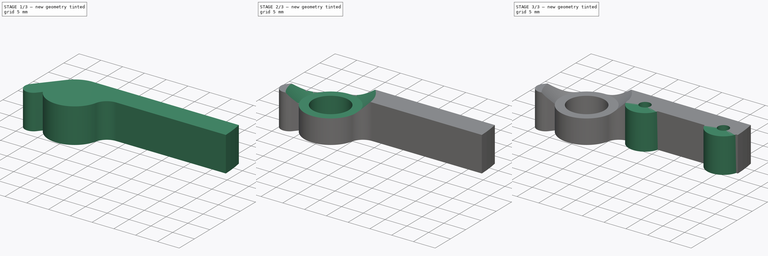
[diagram: build sequence overview — one tinted view per stage of 3, left to right]
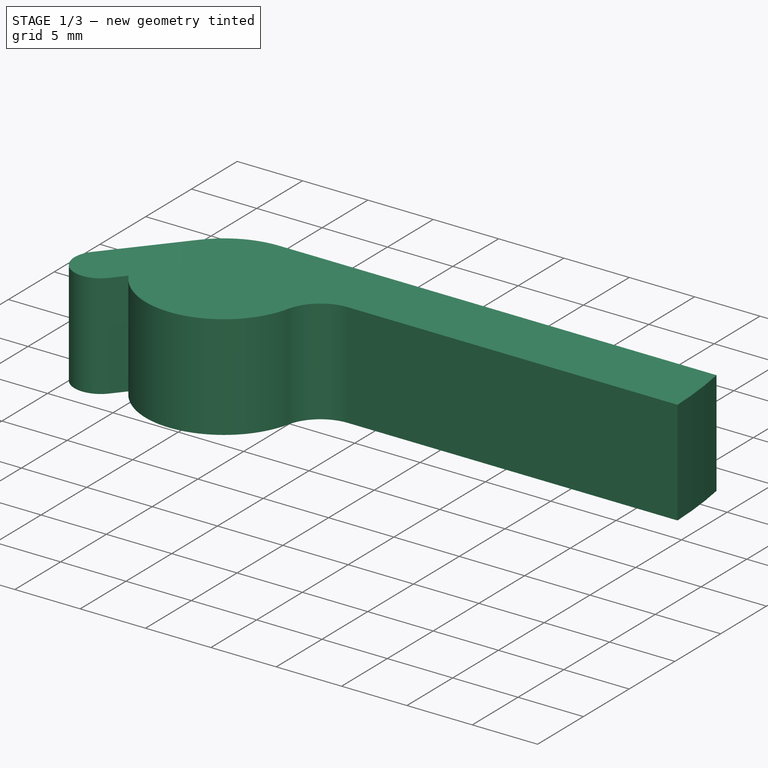
[diagram: stage 1 of 3 — iso view after this stage's code; geometry added in this stage tinted green]
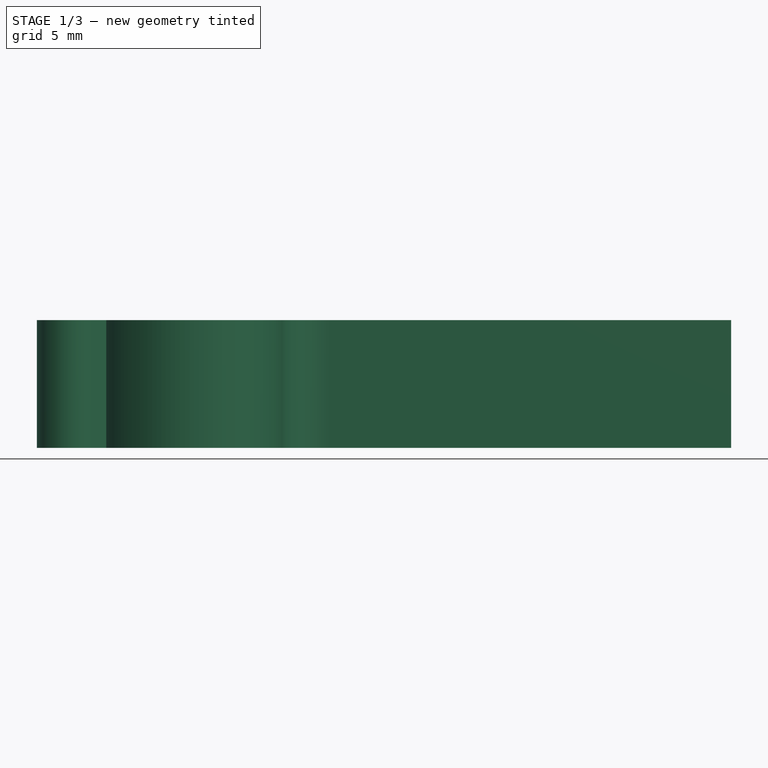
[diagram: stage 1 of 3 — front view after this stage's code; geometry added in this stage tinted green]
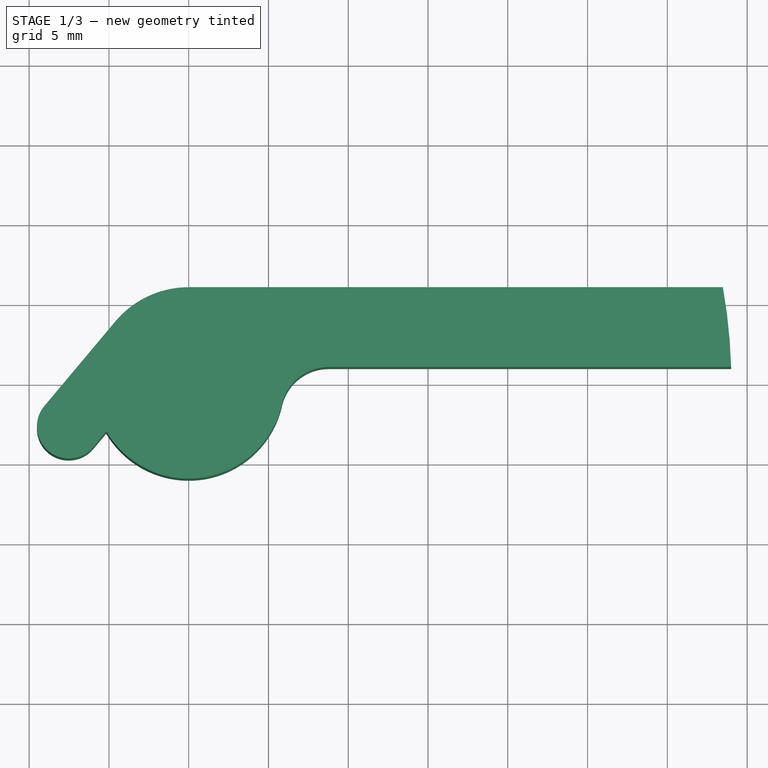
[diagram: stage 1 of 3 — top view after this stage's code; geometry added in this stage tinted green]
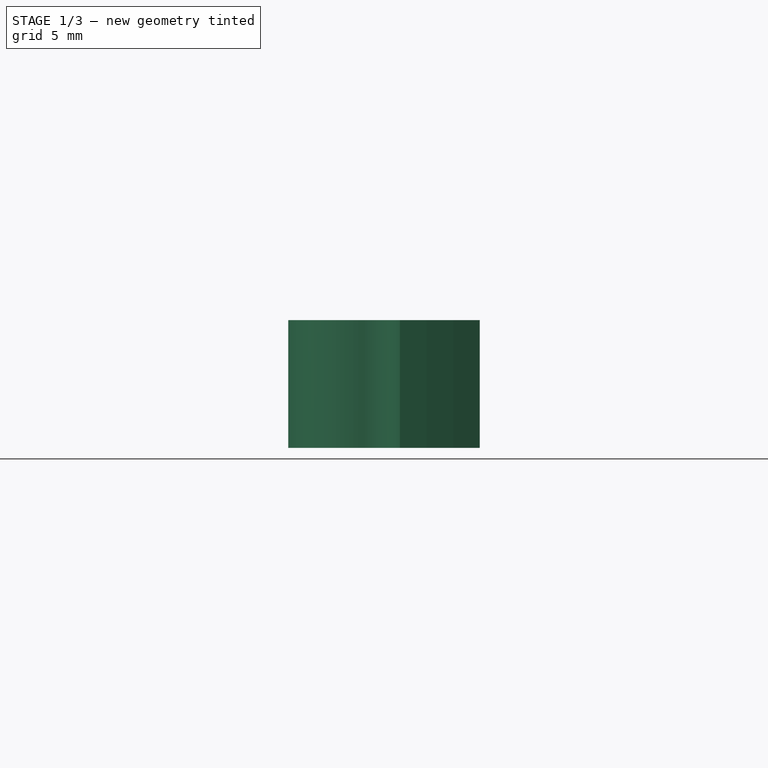
[diagram: stage 1 of 3 — right view after this stage's code; geometry added in this stage tinted green]
FCSTD DOCUMENT  (FreeCAD 1.0R39109 (Git))
Label: LoadingLever.stl
License: All rights reserved
LicenseURL: http://en.wikipedia.org/wiki/All_rights_reserved
objects: Sketcher::SketchObject×5, PartDesign::Pad×3, PartDesign::Groove×1, PartDesign::Pocket×1, PartDesign::Body×1, App::Part×1
note: 26 computed .brp shape members not serialized (recipe doc carries the construction recipe); baked Part::Feature solids carry a one-line shape summary decoded from their .brp

FEATURE [Sketcher::SketchObject] Sketch
  ArcFitTolerance = 1e-06
  AttachmentSupport = -> [XY_Plane001]
  FullyConstrained = true
  MakeInternals = false
  MapMode = 5
  sketch-geometry (6):
    g0: Circle [constr] CenterX=0 CenterY=0 CenterZ=0 NormalX=0 NormalY=0 NormalZ=1 AngleXU=0 Radius=6
    g1: ArcOfCircle CenterX=0 CenterY=0 CenterZ=0 NormalX=0 NormalY=0 NormalZ=1 AngleXU=0 Radius=6 StartAngle=1.5708 EndAngle=6.05909
    g2: ArcOfCircle CenterX=0 CenterY=0 CenterZ=0 NormalX=0 NormalY=0 NormalZ=1 AngleXU=0 Radius=34.0147 StartAngle=0.0294033 EndAngle=0.177322
    g3: LineSegment StartX=33.4813 StartY=6 StartZ=0 EndX=7.1e-15 EndY=6 EndZ=0
    g4: LineSegment StartX=34 StartY=1 StartZ=0 EndX=8.77496 EndY=1 EndZ=0
    g5: ArcOfCircle CenterX=8.77496 CenterY=-2 CenterZ=0 NormalX=0 NormalY=0 NormalZ=1 AngleXU=0 Radius=3 StartAngle=1.5708 EndAngle=2.9175
  constraints (16):
    c: Coincident(g0,g-1)
    c: Diameter(g0) = 12
    c: Coincident(g1,g0)
    c: DistanceY(g-1,g2) = 6
    c: DistanceY(g2,g2) = 5
    c: Coincident(g2,g0)
    c: DistanceX(g-1,g2) = 34
    c: Coincident(g3,g2)
    c: Horizontal(g3)
    c: PointOnObject(g3,g-2)
    c: Coincident(g4,g2)
    c: Horizontal(g4)
    c: Tangent(g5,g4) = -1.5708
    c: Tangent(g5,g1) = 1.5708
    c: Radius(g5) = 3
    c: Coincident(g1,g3)
FEATURE [PartDesign::Pad] Pad  label="Base"
  Direction = (0,0,1)
  Length = 8
  Length2 = 10
  Midplane = true
  Profile = -> Sketch
  ReferenceAxis = -> Sketch [N_Axis]
  Refine = true
  Suppressed = false
  Type = 0
FEATURE [Sketcher::SketchObject] Sketch001
  ArcFitTolerance = 1e-06
  AttachmentSupport = -> [XY_Plane001]
  FullyConstrained = true
  MakeInternals = false
  MapMode = 5
  sketch-geometry (7):
    g0: ArcOfCircle CenterX=-7.51754 CenterY=-2.73616 CenterZ=0 NormalX=0 NormalY=0 NormalZ=1 AngleXU=0 Radius=2 StartAngle=2.44346 EndAngle=5.58505
    g1: LineSegment [constr] StartX=-9.39693 StartY=-3.4202 StartZ=0 EndX=0 EndY=0 EndZ=0
    g2: LineSegment StartX=-9.04963 StartY=-1.45059 StartZ=0 EndX=-4.59627 EndY=3.85673 EndZ=0
    g3: LineSegment StartX=-5.98545 StartY=-4.02174 StartZ=0 EndX=-1.53209 EndY=1.28558 EndZ=0
    g4: Circle [constr] CenterX=0 CenterY=0 CenterZ=0 NormalX=0 NormalY=0 NormalZ=1 AngleXU=0 Radius=6
    g5: ArcOfCircle CenterX=-3.06418 CenterY=2.57115 CenterZ=0 NormalX=0 NormalY=0 NormalZ=1 AngleXU=0 Radius=2 StartAngle=5.58505 EndAngle=8.72665
    g6: LineSegment [constr] StartX=-4.59627 StartY=3.85673 StartZ=0 EndX=0 EndY=4e-16 EndZ=0
  constraints (17):
    c: Radius(g0) = 2
    c: PointOnObject(g1,g0)
    c: PointOnObject(g0,g1)
    c: Distance(g1,g1) = 10
    c: Angle(g-1,g1) = 0.349066
    c: Tangent(g3,g0) = -1.5708
    c: Tangent(g2,g0) = 1.5708
    c: Coincident(g1,g4)
    c: Coincident(g1,g-1)
    c: Equal(g5,g0)
    c: Tangent(g5,g2) = 1.5708
    c: Tangent(g5,g3) = -1.5708
    c: PointOnObject(g2,g4)
    c: Diameter(g4) = 12
    c: Coincident(g6,g2)
    c: Coincident(g6,g1)
    c: PointOnObject(g5,g6)
FEATURE [PartDesign::Pad] Pad001  label="Cam"
  BaseFeature = -> Pad
  Direction = (0,0,1)
  Length = 8
  Length2 = 10
  Midplane = true
  Profile = -> Sketch001
  ReferenceAxis = -> Sketch001 [N_Axis]
  Refine = true
  Suppressed = false
  Type = 0
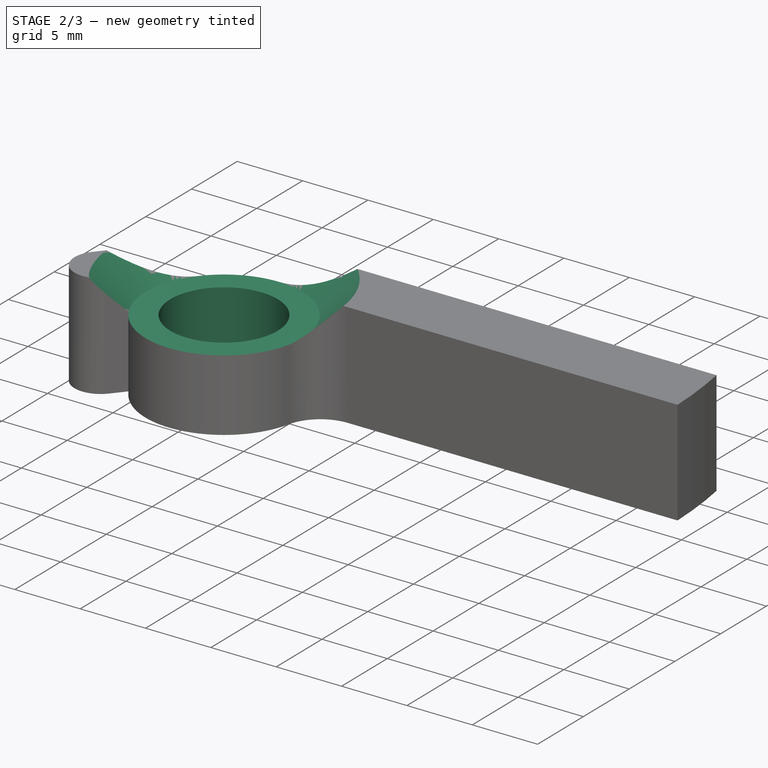
[diagram: stage 2 of 3 — iso view after this stage's code; geometry added in this stage tinted green]
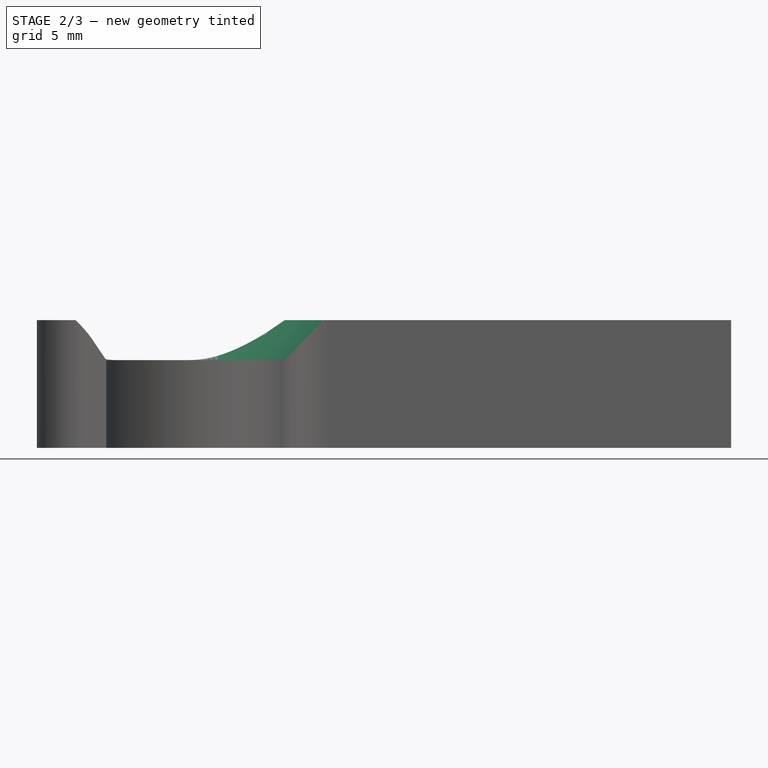
[diagram: stage 2 of 3 — front view after this stage's code; geometry added in this stage tinted green]
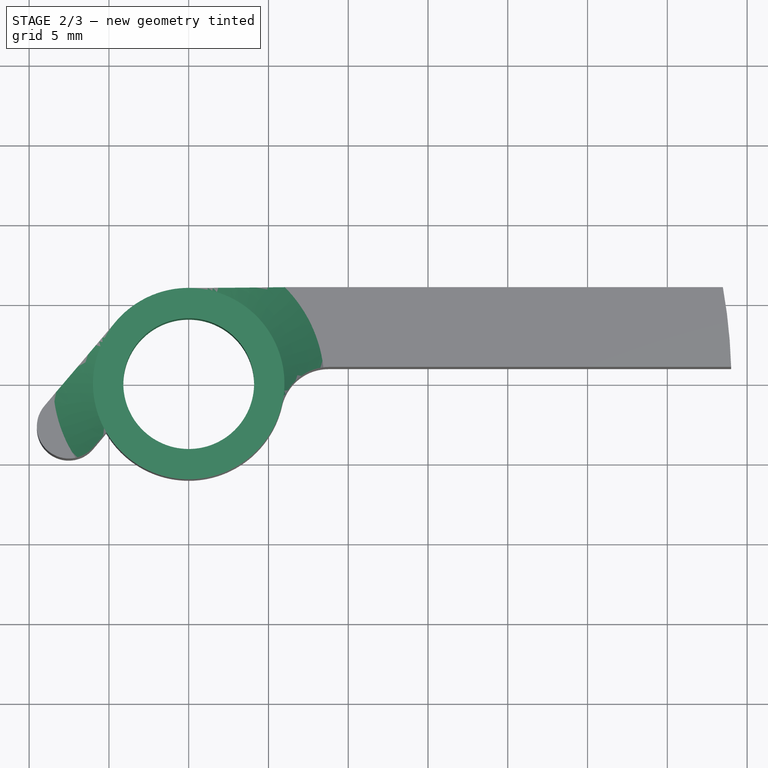
[diagram: stage 2 of 3 — top view after this stage's code; geometry added in this stage tinted green]
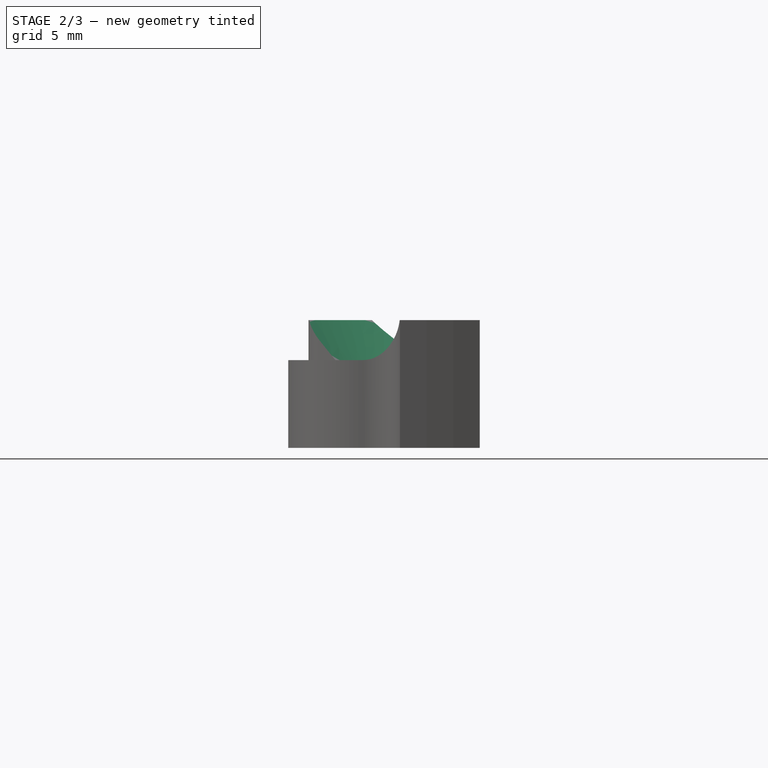
[diagram: stage 2 of 3 — right view after this stage's code; geometry added in this stage tinted green]
FEATURE [Sketcher::SketchObject] Sketch002
  ArcFitTolerance = 1e-06
  AttachmentSupport = -> [XZ_Plane001]
  FullyConstrained = true
  MakeInternals = false
  MapMode = 5
  Placement = pos=(0,0,0) rot=(1,0,0;1.5708rad)
  sketch-geometry (6):
    g0: LineSegment StartX=0 StartY=-20 StartZ=0 EndX=-4.1 EndY=-20 EndZ=0
    g1: LineSegment StartX=-4.1 StartY=-20 StartZ=0 EndX=-4.1 EndY=1.5 EndZ=0
    g2: LineSegment StartX=-4.1 StartY=1.5 StartZ=0 EndX=-6 EndY=1.5 EndZ=0
    g3: LineSegment StartX=-6 StartY=1.5 StartZ=0 EndX=-24.5 EndY=20 EndZ=0
    g4: LineSegment StartX=-24.5 StartY=20 StartZ=0 EndX=0 EndY=20 EndZ=0
    g5: LineSegment StartX=0 StartY=20 StartZ=0 EndX=0 EndY=-20 EndZ=0
  constraints (18):
    c: PointOnObject(g0,g-2)
    c: Horizontal(g0)
    c: Coincident(g0,g1)
    c: Vertical(g1)
    c: Coincident(g1,g2)
    c: Horizontal(g2)
    c: Coincident(g2,g3)
    c: Coincident(g3,g4)
    c: Horizontal(g4)
    c: Coincident(g4,g5)
    c: Coincident(g5,g0)
    c: Vertical(g5)
    c: DistanceX(g0,g0) = 4.1
    c: DistanceX(g2,g-1) = 6
    c: Angle(g3,g2) = 0.785398
    c: DistanceY(g-1,g4) = 20
    c: DistanceY(g0,g-1) = 20
    c: DistanceY(g-1,g1) = 1.5
FEATURE [PartDesign::Groove] Groove  label="PivotSeat"
  Angle = 360
  Angle2 = 60
  Axis = (0,2e-16,1)
  Base = (0,0,0)
  BaseFeature = -> Pad001
  Profile = -> Sketch002
  ReferenceAxis = -> Sketch002 [V_Axis]
  Refine = true
  Reversed = true
  Suppressed = false
  Type = 0
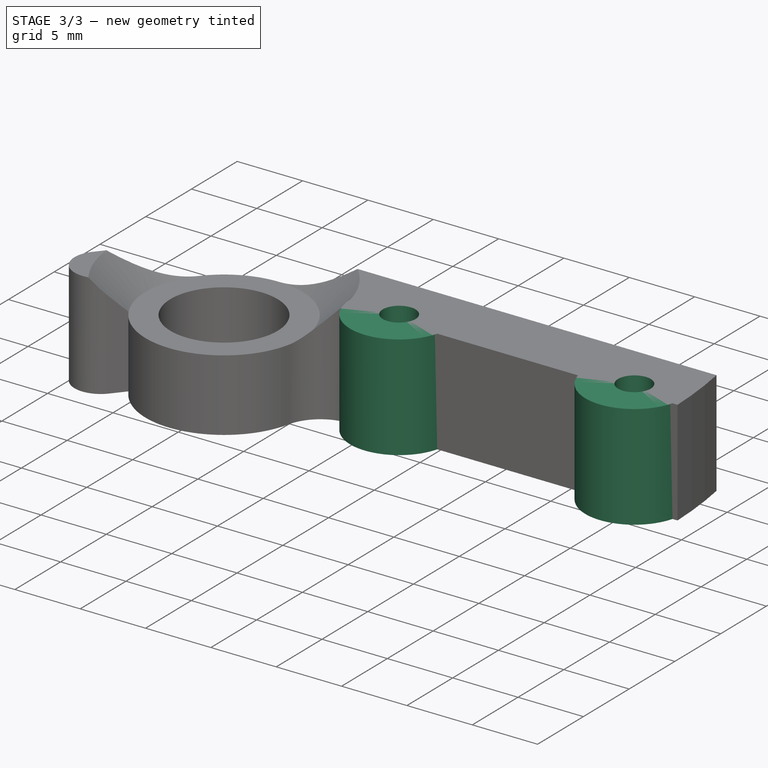
[diagram: stage 3 of 3 — iso view after this stage's code; geometry added in this stage tinted green]
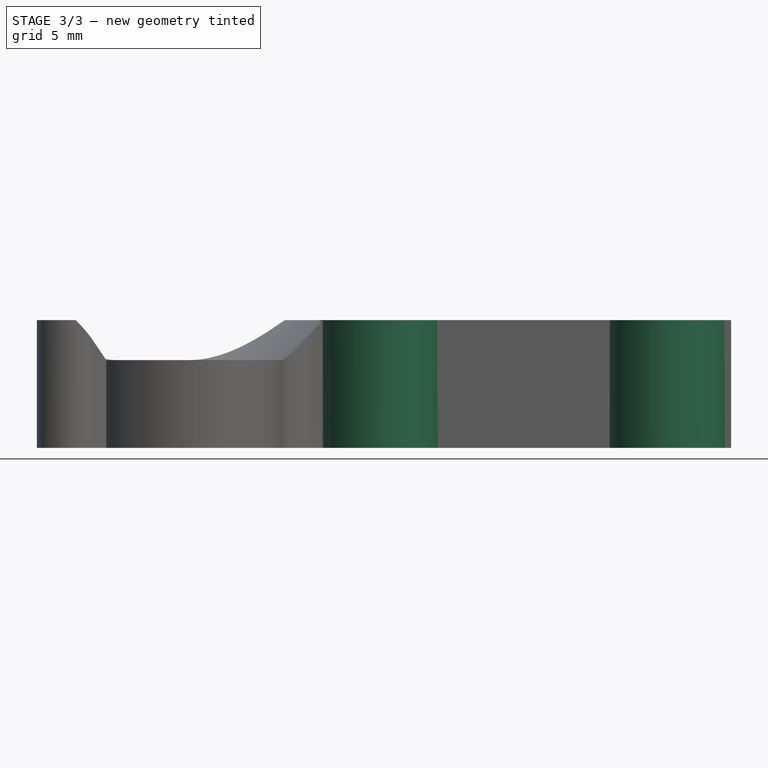
[diagram: stage 3 of 3 — front view after this stage's code; geometry added in this stage tinted green]
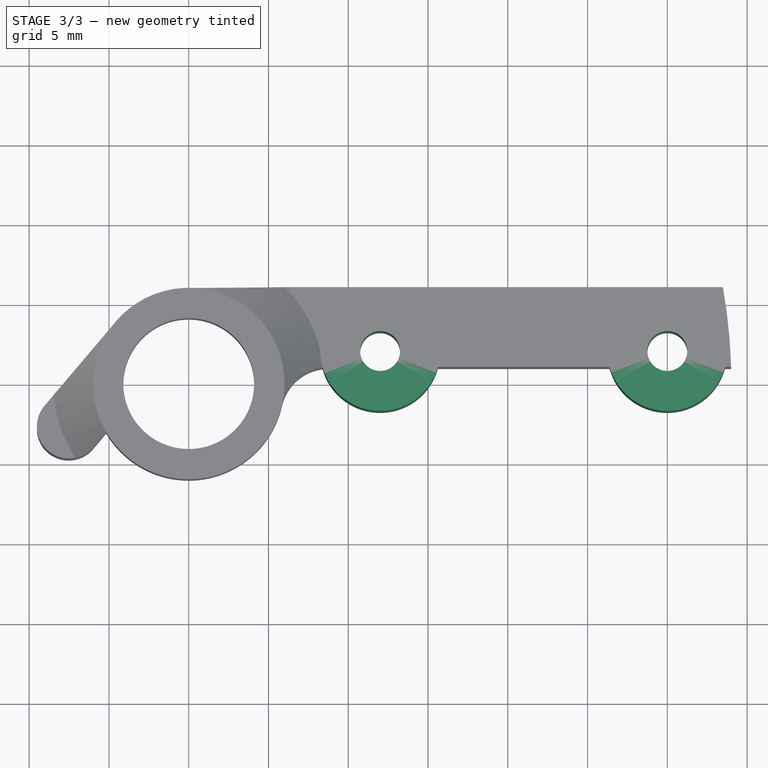
[diagram: stage 3 of 3 — top view after this stage's code; geometry added in this stage tinted green]
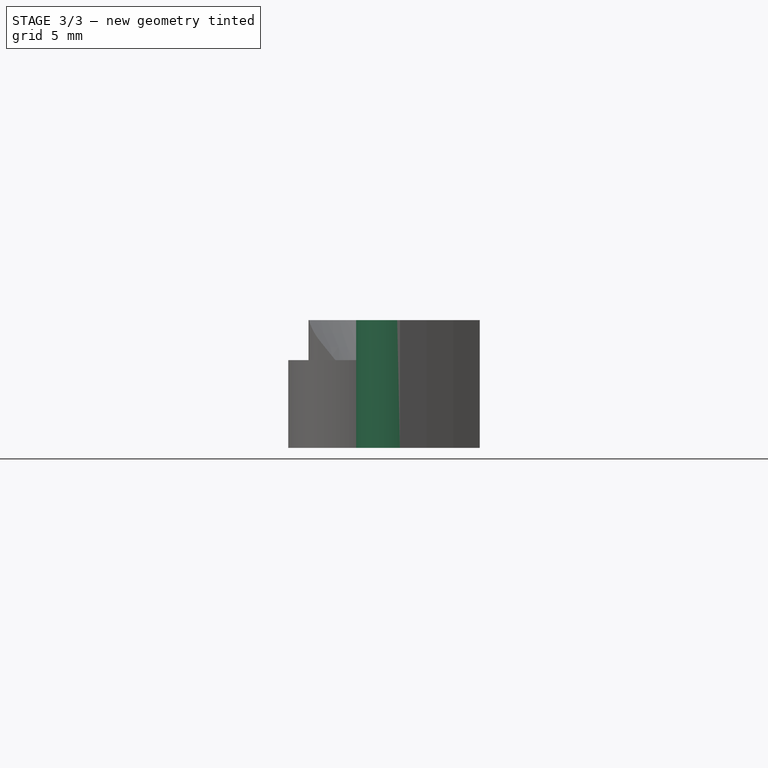
[diagram: stage 3 of 3 — right view after this stage's code; geometry added in this stage tinted green]
FEATURE [Sketcher::SketchObject] Sketch003
  ArcFitTolerance = 1e-06
  AttachmentSupport = -> [XY_Plane001]
  FullyConstrained = true
  MakeInternals = false
  MapMode = 5
  sketch-geometry (2):
    g0: Circle CenterX=12 CenterY=2 CenterZ=0 NormalX=0 NormalY=0 NormalZ=1 AngleXU=0 Radius=3.75
    g1: Circle CenterX=30 CenterY=2 CenterZ=0 NormalX=0 NormalY=0 NormalZ=1 AngleXU=0 Radius=3.75
  constraints (6):
    c: Diameter(g1) = 7.5
    c: Horizontal(g0,g1)
    c: DistanceX(g0,g1) = 18
    c: DistanceY(g-1,g1) = 2
    c: DistanceX(g-1,g0) = 12
    c: Equal(g0,g1)
FEATURE [PartDesign::Pad] Pad002
  BaseFeature = -> Groove
  Direction = (0,0,1)
  Length = 8
  Length2 = 10
  Midplane = true
  Profile = -> Sketch003
  ReferenceAxis = -> Sketch003 [N_Axis]
  Refine = true
  Suppressed = false
  Type = 0
FEATURE [Sketcher::SketchObject] Sketch004
  ArcFitTolerance = 1e-06
  AttachmentSupport = -> [XY_Plane001]
  FullyConstrained = true
  MakeInternals = false
  MapMode = 5
  sketch-geometry (2):
    g0: Circle CenterX=12 CenterY=2 CenterZ=0 NormalX=0 NormalY=0 NormalZ=1 AngleXU=0 Radius=1.25
    g1: Circle CenterX=30 CenterY=2 CenterZ=0 NormalX=0 NormalY=0 NormalZ=1 AngleXU=0 Radius=1.25
  constraints (6):
    c: Horizontal(g1,g0)
    c: DistanceX(g-1,g0) = 12
    c: DistanceX(g0,g1) = 18
    c: DistanceY(g-1,g1) = 2
    c: Diameter(g1) = 2.5
    c: Equal(g0,g1)
FEATURE [PartDesign::Pocket] Pocket
  BaseFeature = -> Pad002
  Direction = (0,0,-1)
  Length = 5
  Length2 = 5
  Midplane = true
  Profile = -> Sketch004
  ReferenceAxis = -> Sketch004 [N_Axis]
  Refine = true
  Suppressed = false
  Type = 1
FEATURE [PartDesign::Body] Body
  AllowCompound = false
  Group = -> [Sketch,Pad,Sketch001,Pad001,Sketch002,Groove,Sketch003,Pad002,Sketch004,Pocket]
  Origin = -> Origin001
  Tip = -> Pocket
FEATURE [App::Part] Part  label="LoadingLever.stl"
  Group = -> [Body]
  Origin = -> Origin
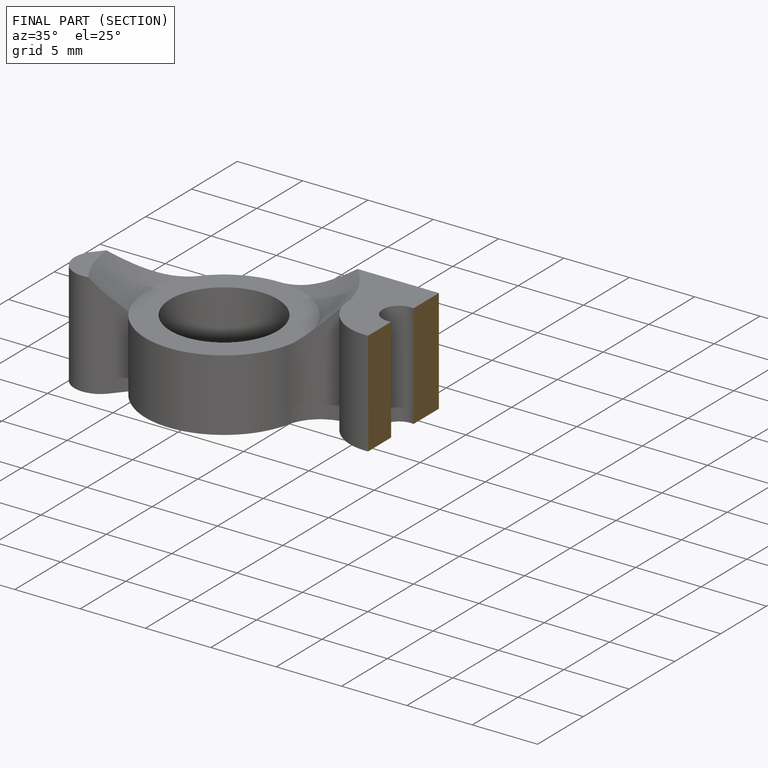
[diagram: finished part — half-section view (interior)]
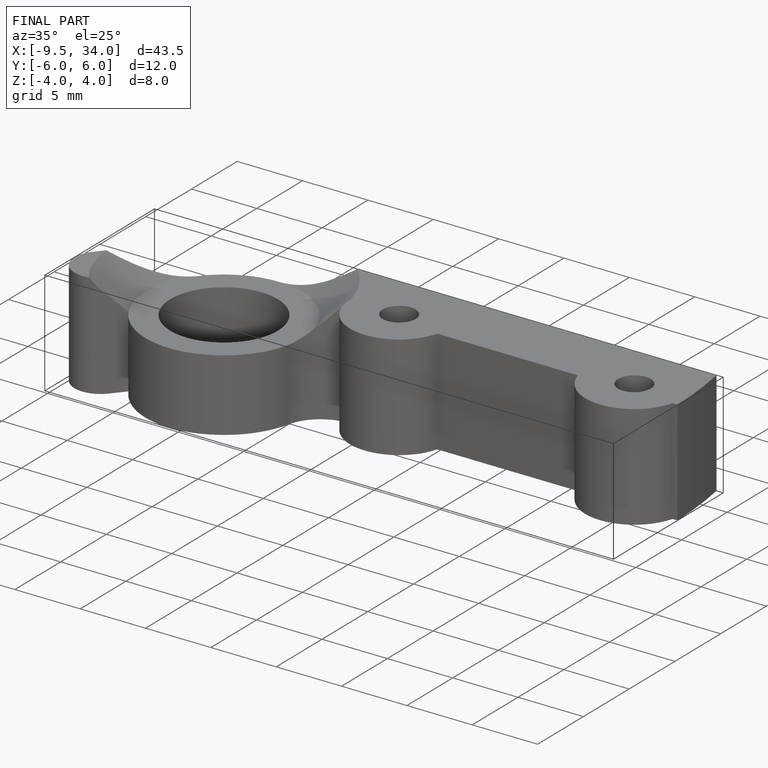
[diagram: finished part — iso view with bounding-box wireframe]
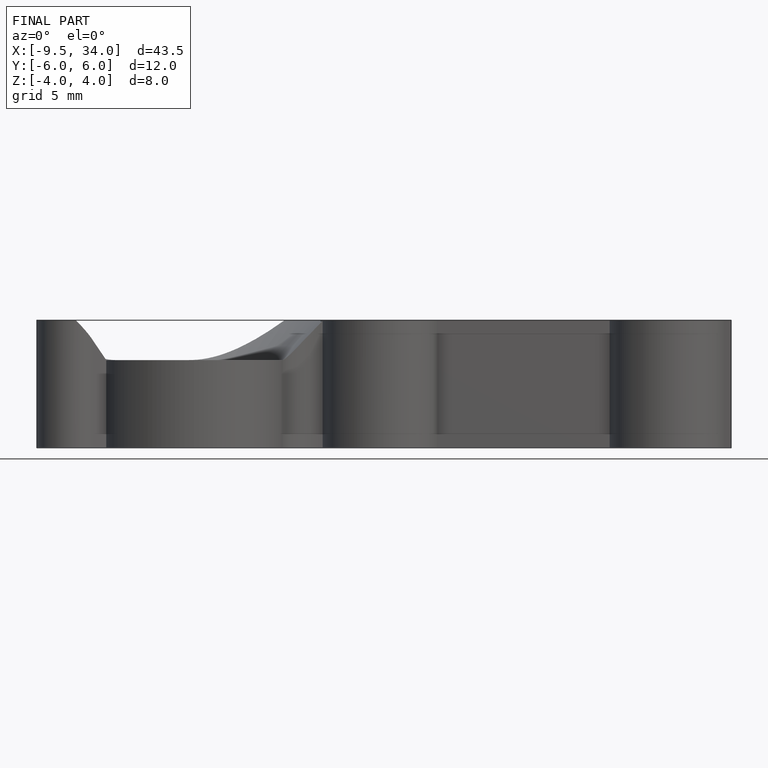
[diagram: finished part — front view with bounding-box wireframe]
